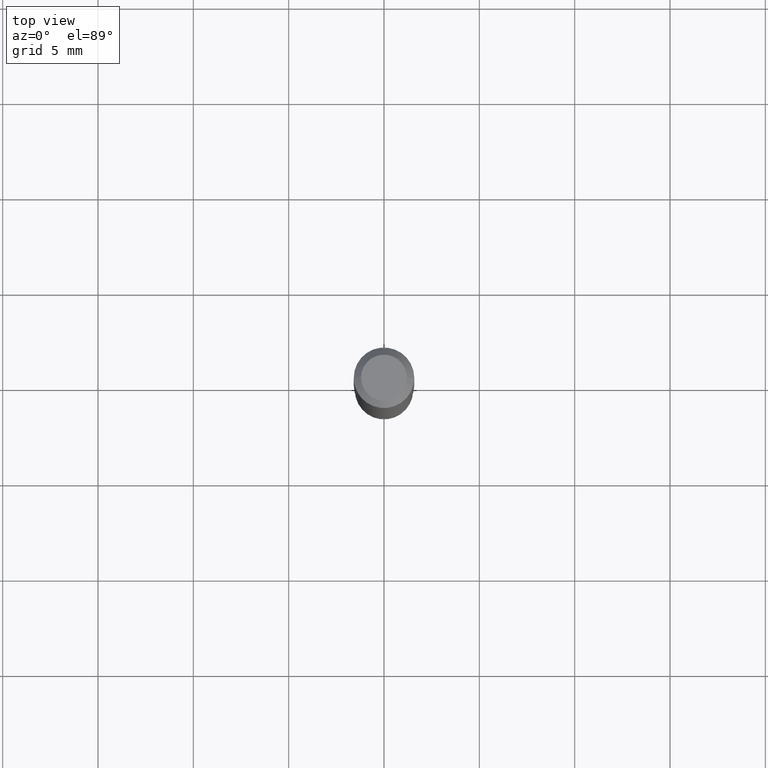
[diagram: clean part render]
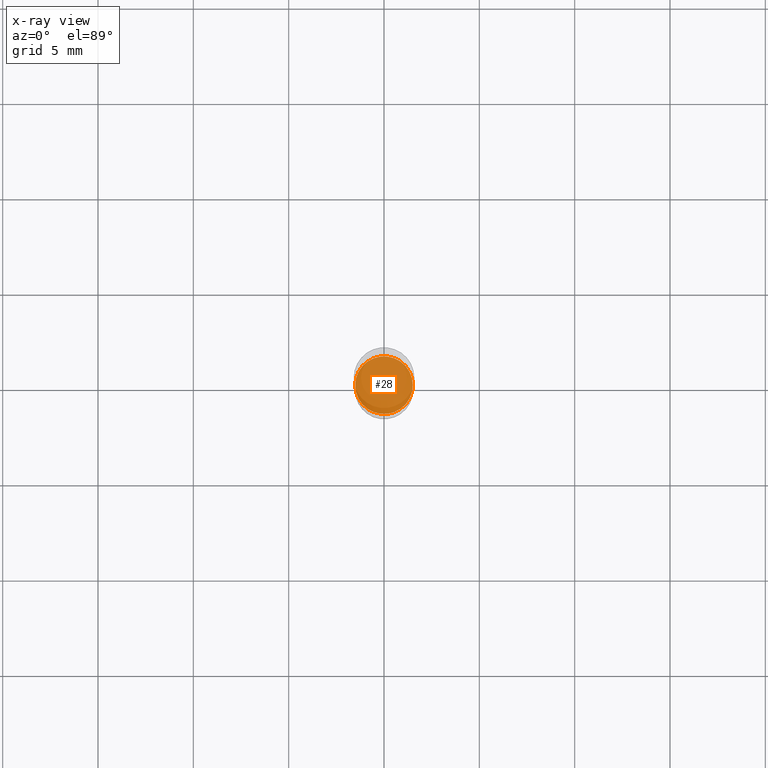
[diagram: x-ray — body ghosted, one internal face saturated and labeled with its STEP entity id]
A machine part, top view, then the same camera in x-ray: the body is ghosted and one INTERNAL B-rep face — a face not visible from any outside direction — is saturated and labeled: STEP entity #28.
In plain terms, the highlighted planar face has unit normal (-0, 0, 1).
Its self-contained STEP definition (entity closure, byte-faithful):
#11 = AXIS2_PLACEMENT_3D ( 'NONE', #188, #299, #198 ) ;
#28 = ADVANCED_FACE ( 'NONE', ( #374 ), #196, .F. ) ;
#44 = CARTESIAN_POINT ( 'NONE',  ( 2.200921925566623666E-29, -3.142333204958831853E-15, -0.9000000000000002442 ) ) ;
#49 = CIRCLE ( 'NONE', #269, 0.05949999999999999734 ) ;
#111 = DIRECTION ( 'NONE',  ( -2.445468806185136597E-29, 3.491481338843145583E-15, 1.000000000000000000 ) ) ;
#117 = ORIENTED_EDGE ( 'NONE', *, *, #439, .F. ) ;
#143 = DIRECTION ( 'NONE',  ( 1.000000000000000000, -6.982962677686268288E-15, 0.000000000000000000 ) ) ;
#188 = CARTESIAN_POINT ( 'NONE',  ( 2.200921925566623666E-29, -3.142333204958831853E-15, -0.9000000000000002442 ) ) ;
#196 = PLANE ( 'NONE',  #11 ) ;
#198 = DIRECTION ( 'NONE',  ( 1.000000000000000000, -6.982962677686265922E-15, 4.876176775795935793E-29 ) ) ;
#246 = DIRECTION ( 'NONE',  ( 1.000000000000000000, -6.982962677686268288E-15, 0.000000000000000000 ) ) ;
#248 = ORIENTED_EDGE ( 'NONE', *, *, #395, .F. ) ;
#250 = DIRECTION ( 'NONE',  ( -2.445468806185136597E-29, 3.491481338843145583E-15, 1.000000000000000000 ) ) ;
#269 = AXIS2_PLACEMENT_3D ( 'NONE', #44, #111, #246 ) ;
#273 = CARTESIAN_POINT ( 'NONE',  ( -0.05949999999999999734, -2.716911050007460666E-15, -0.9000000000000002442 ) ) ;
#287 = VERTEX_POINT ( 'NONE', #273 ) ;
#299 = DIRECTION ( 'NONE',  ( -2.438088387897960049E-29, 3.491481338843145188E-15, 1.000000000000000000 ) ) ;
#324 = AXIS2_PLACEMENT_3D ( 'NONE', #353, #250, #143 ) ;
#353 = CARTESIAN_POINT ( 'NONE',  ( 2.200921925566623666E-29, -3.142333204958831853E-15, -0.9000000000000002442 ) ) ;
#374 = FACE_OUTER_BOUND ( 'NONE', #433, .T. ) ;
#393 = CARTESIAN_POINT ( 'NONE',  ( 0.05949999999999999734, -3.557819484281164690E-15, -0.9000000000000002442 ) ) ;
#395 = EDGE_CURVE ( 'NONE', #464, #287, #49, .T. ) ;
#433 = EDGE_LOOP ( 'NONE', ( #248, #117 ) ) ;
#439 = EDGE_CURVE ( 'NONE', #287, #464, #454, .T. ) ;
#454 = CIRCLE ( 'NONE', #324, 0.05949999999999999734 ) ;
#464 = VERTEX_POINT ( 'NONE', #393 ) ;